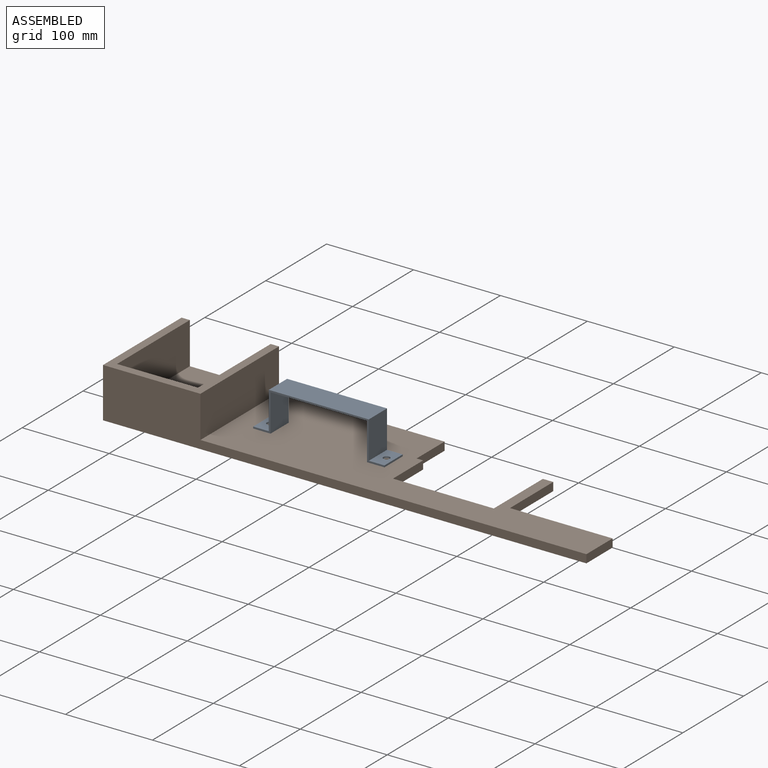
[diagram: assembled view]
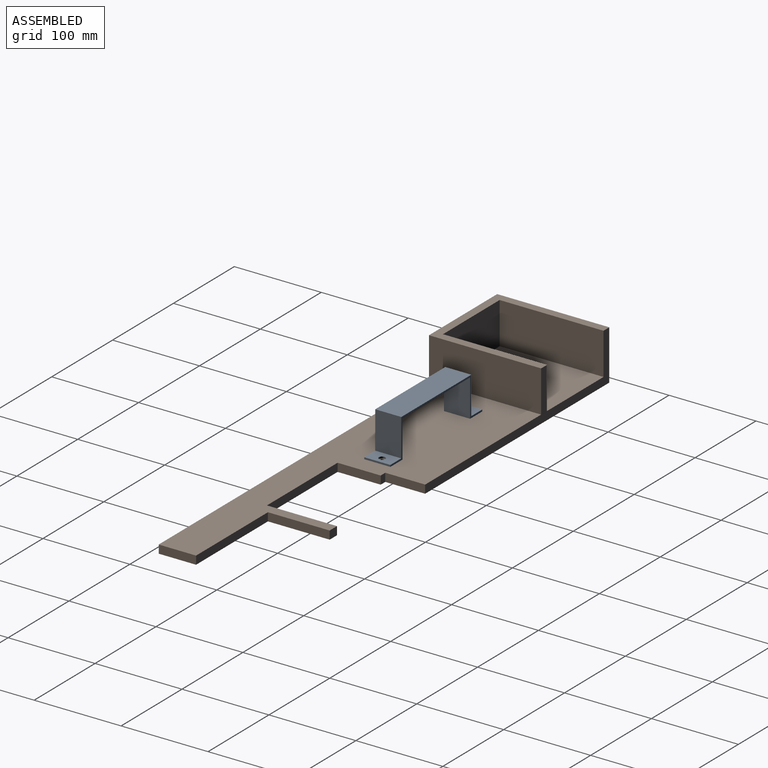
[diagram: assembled view, second angle]
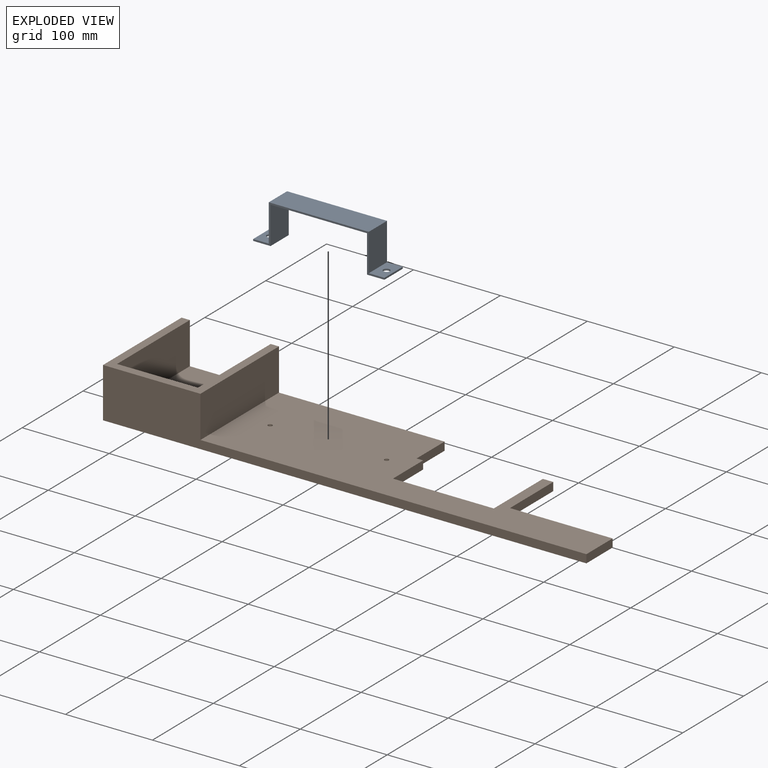
[diagram: exploded view]
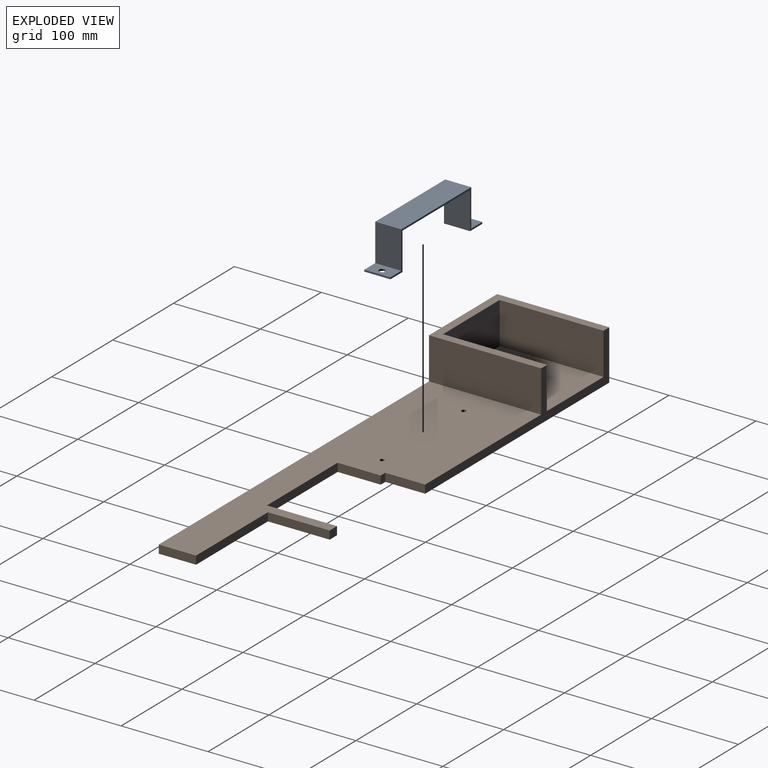
[diagram: exploded view, second angle]
ASSEMBLY  parts=2 mates=3
PART A: 16 faces, bbox 151x45x30 mm
  f0: plane 30x18mm, normal (0,1,0), area 495.5mm2, adj f1,f11,f12,f13,f15
  f1: plane 30x2mm, normal (-1,0,0), area 60mm2, adj f0,f2,f12,f13
  f2: plane 30x20mm, normal (0,-1,0), area 555.5mm2, adj f1,f3,f12,f13,f15
  f3: plane 43x30mm, normal (1,0,0), area 1290mm2, adj f2,f4,f12,f13
  f4: plane 111x30mm, normal (0,-1,0), area 3330mm2, adj f3,f5,f12,f13
  f5: plane 43x30mm, normal (-1,0,0), area 1290mm2, adj f4,f6,f12,f13
  f6: plane 30x20mm, normal (0,-1,0), area 557.4mm2, adj f5,f7,f12,f13,f14
  f7: plane 30x2mm, normal (1,0,0), area 60mm2, adj f6,f8,f12,f13
  f8: plane 30x18mm, normal (0,1,0), area 497.4mm2, adj f7,f9,f12,f13,f14
  f9: plane 43x30mm, normal (1,0,0), area 1290mm2, adj f8,f10,f12,f13
  f10: plane 115x30mm, normal (0,1,0), area 3450mm2, adj f9,f11,f12,f13
  f11: plane 43x30mm, normal (-1,0,0), area 1290mm2, adj f0,f10,f12,f13
  f12: plane 151x45mm, normal (0,0,1), area 474mm2, adj f0,f1,f2,f3,f4,f5,f6,f7
  f13: plane 151x45mm, normal (0,0,-1), area 474mm2, adj f0,f1,f2,f3,f4,f5,f6,f7
  f14: cylinder r=3.68mm len=7.37mm, axis (0,1,0), area 46.3mm2, adj f6,f8
  f15: cylinder r=3.76mm len=7.52mm, axis (0,1,0), area 47.3mm2, adj f0,f2
PART B: 22 faces, bbox 556x129x57.5 mm
  f0: plane 119.5x93mm, normal (0,0,1), area 11113.5mm2, adj f12,f16,f17,f18
  f1: plane 129x57.5mm, normal (-1,0,0), area 7417.5mm2, adj f2,f12,f14,f19
  f2: plane 556x57.5mm, normal (0,-1,0), area 10658mm2, adj f1,f3,f13,f14,f15,f19
  f3: plane 43x9.5mm, normal (1,0,0), area 408.5mm2, adj f2,f4,f13,f14
  f4: plane 118x9.5mm, normal (0,1,0), area 1121mm2, adj f3,f5,f13,f14
  f5: plane 71.04x9.5mm, normal (1,0,0), area 674.9mm2, adj f4,f6,f13,f14
  f6: plane 12x9.5mm, normal (0,1,0), area 114mm2, adj f5,f7,f13,f14
  f7: plane 80.54x9.5mm, normal (-1,0,0), area 765.1mm2, adj f6,f8,f13,f14
  f8: plane 116x9.5mm, normal (0,1,0), area 1102mm2, adj f7,f9,f13,f14
  f9: plane 49.61x9.5mm, normal (1,0,0), area 471.3mm2, adj f8,f10,f13,f14
  f10: plane 9.5x7.5mm, normal (0,1,0), area 71.3mm2, adj f9,f11,f13,f14
  f11: plane 45.89x9.5mm, normal (1,0,0), area 436mm2, adj f10,f12,f13,f14
  f12: plane 302.5x57.5mm, normal (0,1,0), area 3785.7mm2, adj f0,f1,f11,f13,f14,f15,f16,f18
  f13: plane 444x129mm, normal (0,0,1), area 35487mm2, adj f2,f3,f4,f5,f6,f7,f8,f9
  f14: plane 556x129mm, normal (0,0,-1), area 49935mm2, adj f1,f2,f3,f4,f5,f6,f7,f8
  f15: plane 129x48mm, normal (1,0,0), area 6192mm2, adj f2,f12,f13,f19
  f16: plane 119.5x48mm, normal (-1,0,0), area 5736mm2, adj f0,f12,f17,f19
  f17: plane 93x48mm, normal (0,1,0), area 4464mm2, adj f0,f16,f18,f19
  f18: plane 119.5x48mm, normal (1,0,0), area 5736mm2, adj f0,f12,f17,f19
  f19: plane 129x112mm, normal (0,0,1), area 3334.5mm2, adj f1,f2,f12,f15,f16,f17,f18
  f20: cylinder r=2.5mm len=9.5mm, axis (0,0,1), area 149.2mm2, adj f13,f14
  f21: cylinder r=2.5mm len=9.5mm, axis (0,0,1), area 149.2mm2, adj f13,f14
PLACE A rot(axis=(1,0,0),90deg) t=(122.64,190.65,-44.79)mm
PLACE B t=(-44.7,111.15,-33.77)mm
MATE slider A.f15 <-> B.f21  axis (0,0,1) through (102.3,175.65,-22.27)mm
MATE slider A.f14 <-> B.f20  axis (0,0,1) through (236.3,175.65,-22.27)mm
MATE planar A.f15 <-> B.f21  axis (0,0,-1) through (102.3,175.65,-24.27)mm
